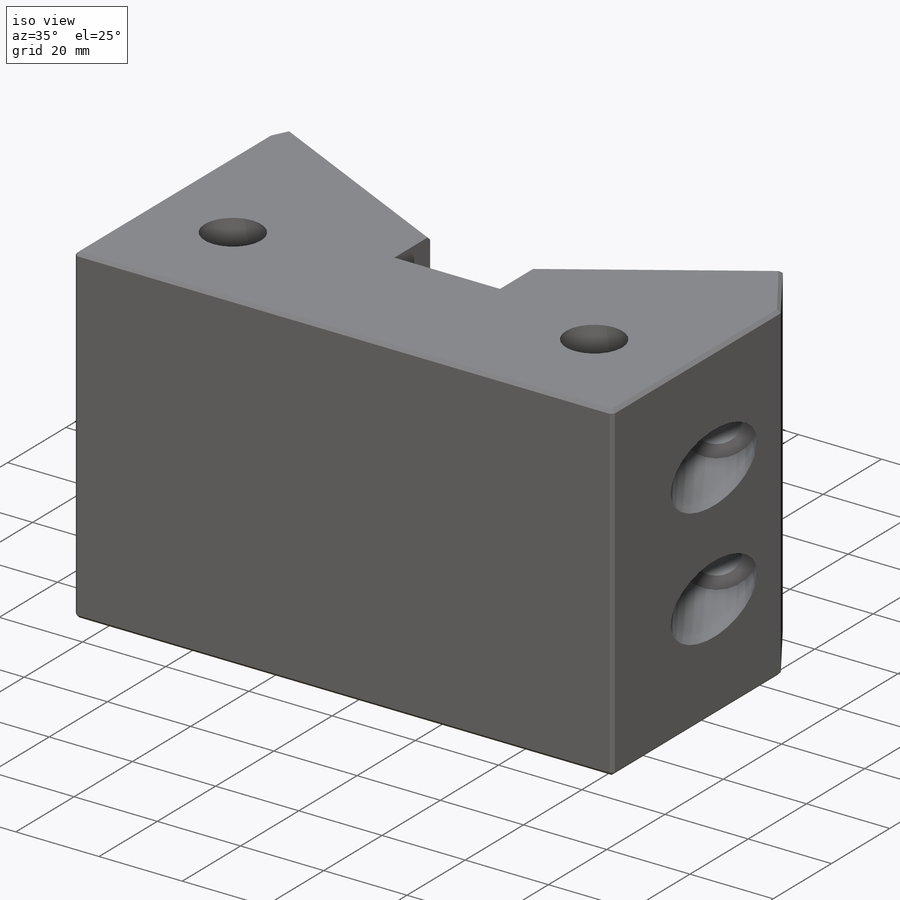
[diagram: iso view]
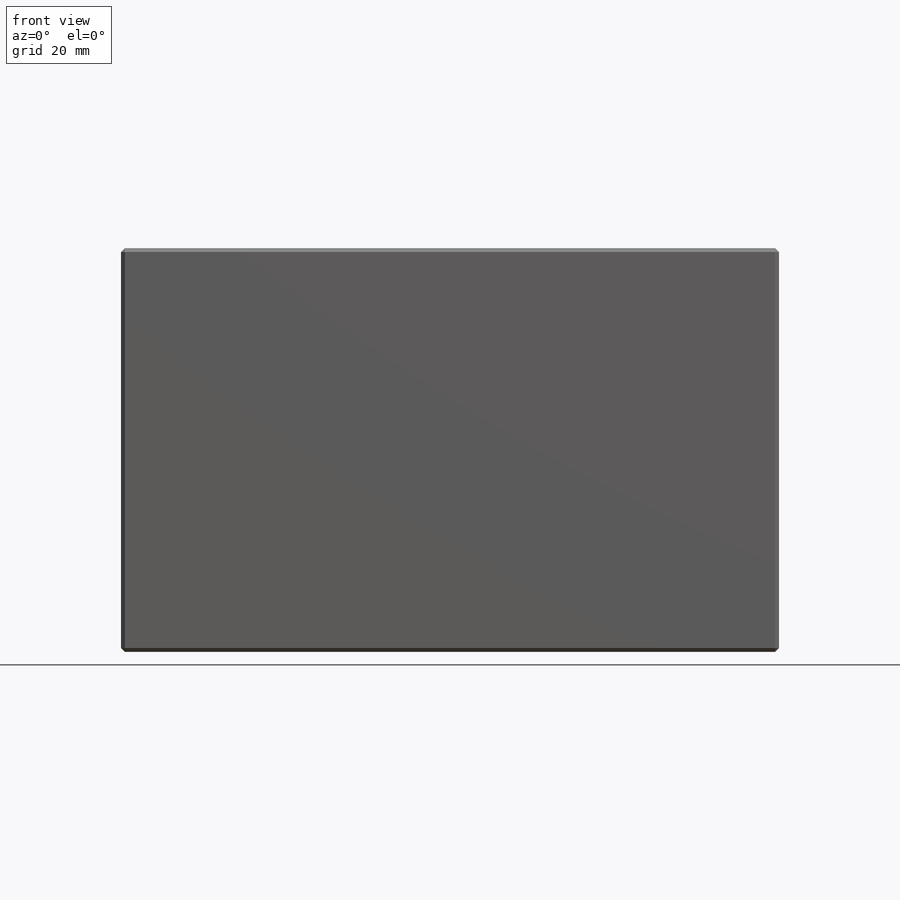
[diagram: front view]
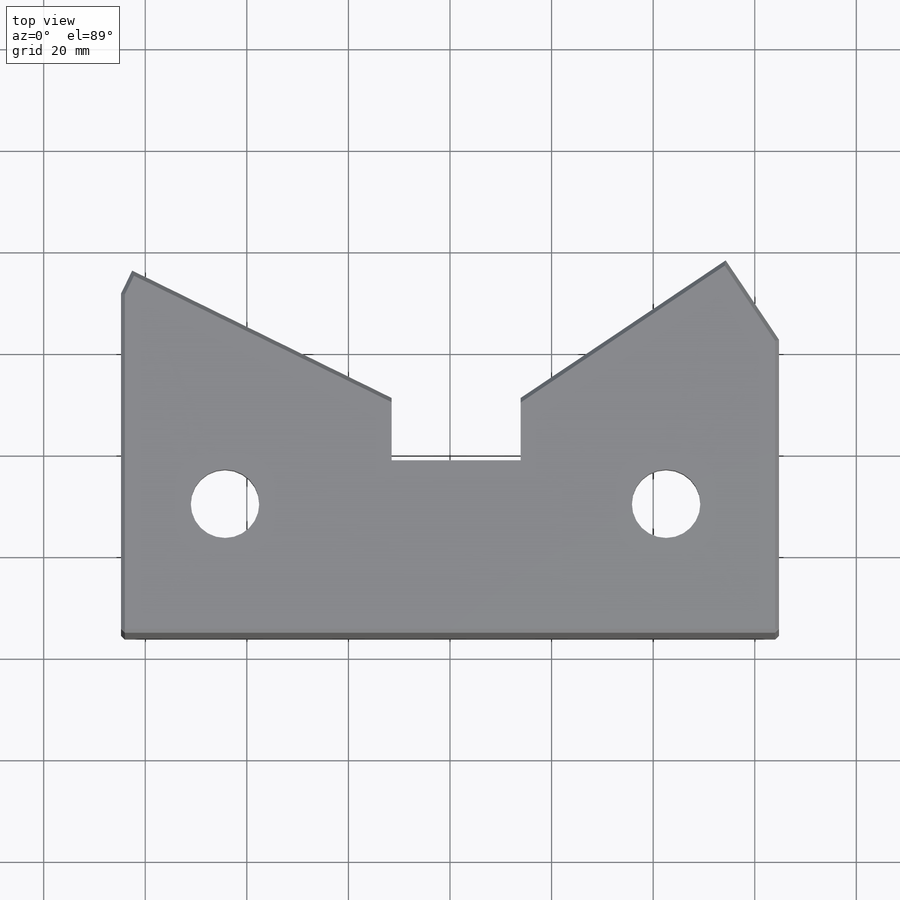
[diagram: top view]
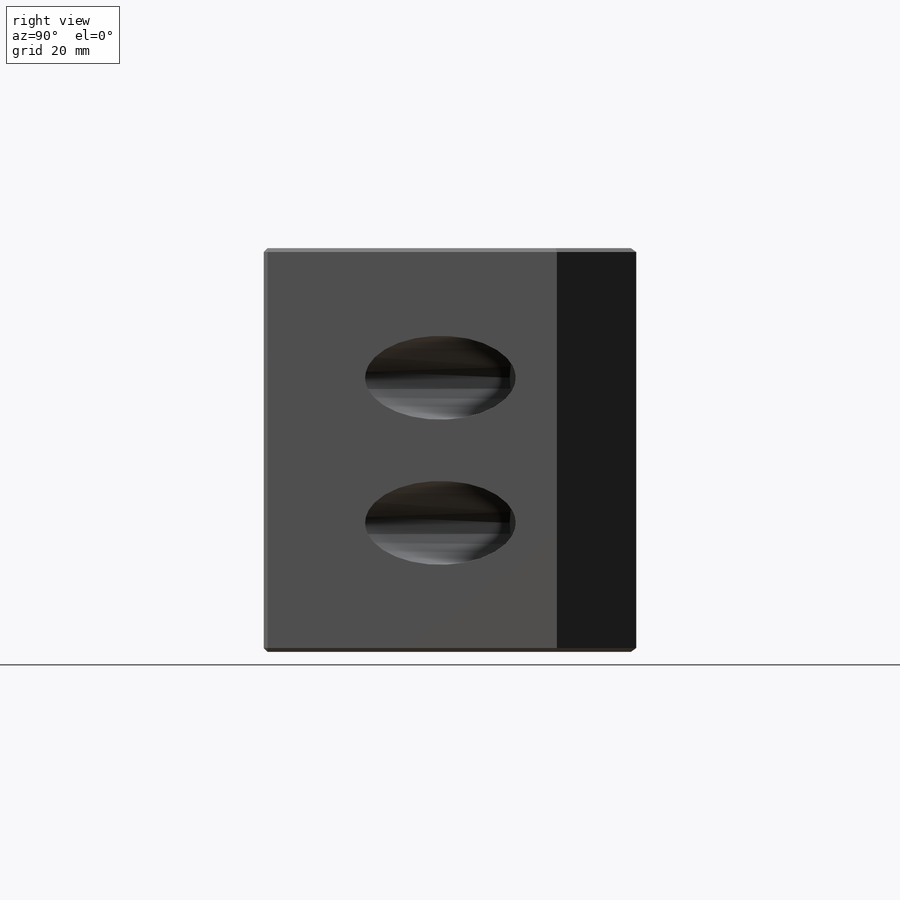
[diagram: right view]
SOLIDWORKS PART (.sldprt)
format: sldprt  version: not decoded by parser v0  size: 481,792 bytes
history: native  units: mm
features: sketch x9, hole x3, plane x2, cut_extrude x2, material x1, extrude x1, chamfer x1 (+16 scaffold rows collapsed)
feature tree (35):
  scaffold x16  (default folders/planes/origin — collapsed)
  material  "6061-T6 Al"
  sketch  "Sketch1"  dims[c1.D1=~16.08431mm c2.D1=120.0deg c2.D2=75.692mm c2.D3=74.168mm c2.D4=129.54mm c2.D5=72.39mm c2.D6=~80.357669mm]
  extrude  "Extrude1"  Depth=79.502mm
  plane  "Plane1"  Offset=66.04mm
  plane  "Plane2"  Offset=66.04mm
  hole  "CBORE for 3/8 Socket Head Cap Screw1"  Diameter=10.31748mm Depth=130.271372mm
  sketch  "Sketch7"  dims[D1=15.24mm D2=15.24mm D3=22.86mm D4=48.26mm]
  sketch  "Sketch6"  dims[hole-wizard template sketch: 42 standard entries collapsed; hole parameters kept: c12.Thru Hole Depth=~130.271372mm c12.C'Bore Dia.=16.51mm c12.C'Bore Depth=50.165mm]
  hole  "CBORE for 3/8 Socket Head Cap Screw2"  Diameter=10.31748mm Depth=138.207862mm
  sketch  "Sketch13"  dims[D1=25.4mm D2=53.975mm D3=25.4mm D4=25.4mm]
  sketch  "Sketch12"  dims[hole-wizard template sketch: 42 standard entries collapsed; hole parameters kept: c12.Thru Hole Depth=~138.207862mm c12.C'Bore Dia.=16.51mm c12.C'Bore Depth=50.165mm]
  sketch  "Sketch14"  dims[D1=25.4mm D2=5.08mm]
  cut_extrude  "Extrude2"  [1 undecoded]
  hole  "CBORE for 1/2 Socket Head Cap Screw1"  Diameter=13.49248mm Depth=79.502mm
  sketch  "Sketch16"  dims[c1.D1=22.225mm c1.D2=25.4mm c2.D1=44.2976mm c2.D3=42.545mm]
  sketch  "Sketch15"  dims[hole-wizard template sketch: 41 standard entries collapsed; hole parameters kept: c12.Thru Hole Dia.=~13.49248mm c12.Thru Hole Depth=79.502mm c12.C'Bore Dia.=20.6375mm c12.C'Bore Depth=68.58mm]
  sketch  "Sketch17"  dims[D1=7.62mm D2=7.62mm]
  cut_extrude  "Extrude3"  [1 undecoded]
  chamfer  "Chamfer1"  Distance=0.762mm Angle=45deg
decode coverage: 14 of 16 modeling features carry decoded parameters
note: ~ marks probable driven/reference dimensions
note: 2 parameter values undecoded
note: suppression state not decoded; provenance and decode notes live in map.json
